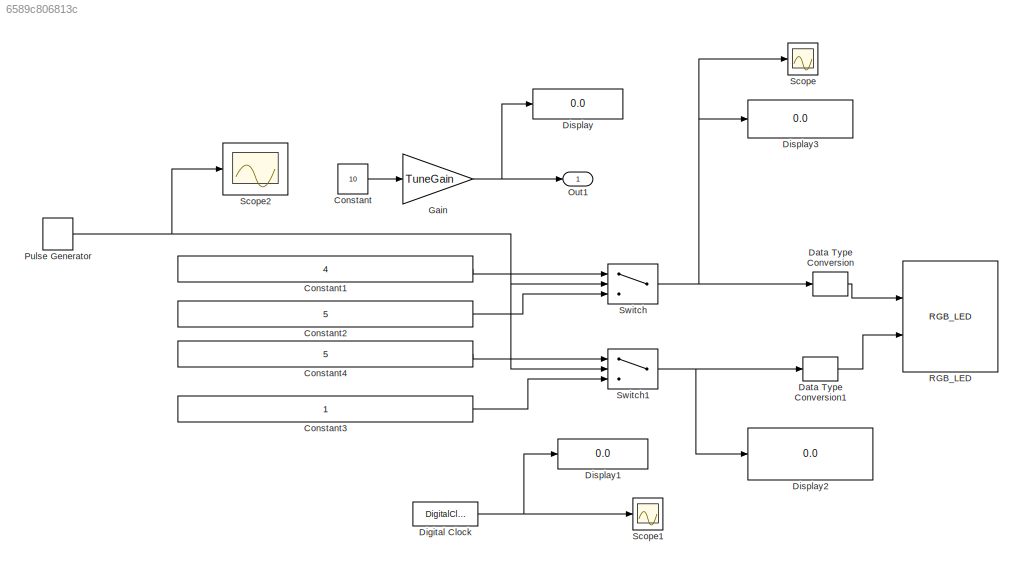
MODEL slx_6589c806813c
KIND model
CONFIG AbsTol = auto
CONFIG EnableMultiTasking = on
CONFIG FixedStep = auto
CONFIG InitFcn = TuneGain = 1
CONFIG MaxStep = auto
CONFIG MinStep = auto
CONFIG RelTol = 1e-3
CONFIG SampleTimeConstraint = Unconstrained
CONFIG Solver = FixedStepDiscrete
CONFIG SolverName = FixedStepDiscrete
CONFIG StartTime = 0.0
CONFIG StopTime = inf
BLOCK [Constant] Constant
  SampleTime = 0.1
  Value = 10
BLOCK [Constant] Constant1
  OutDataTypeStr = int8
  Value = 4
BLOCK [Constant] Constant2
  OutDataTypeStr = int8
  Value = 5
BLOCK [Constant] Constant3
  OutDataTypeStr = int8
BLOCK [Constant] Constant4
  OutDataTypeStr = int8
  Value = 5
BLOCK [DataTypeConversion] Data Type Conversion
  OutDataTypeStr = Enum: RGBLED_MODE_ENUM
  RndMeth = Floor
  SaturateOnIntegerOverflow = off
BLOCK [DataTypeConversion] Data Type Conversion1
  OutDataTypeStr = Enum: RGBLED_COLOR_ENUM
  RndMeth = Floor
  SaturateOnIntegerOverflow = off
BLOCK [DigitalClock] Digital Clock
  SampleTime = 0.1
BLOCK [Display] Display
  Decimation = 1
  Ports = [1]
BLOCK [Display] Display1
  Decimation = 1
  Ports = [1]
BLOCK [Display] Display2
  Decimation = 1
  Ports = [1]
BLOCK [Display] Display3
  Decimation = 1
  Ports = [1]
BLOCK [Gain] Gain
  Gain = TuneGain
  OutDataTypeStr = Inherit: Inherit via internal rule
  ParamDataTypeStr = Inherit: Inherit via internal rule
  SaturateOnIntegerOverflow = off
BLOCK [Outport] Out1
  IconDisplay = Port number
BLOCK [DiscretePulseGenerator] Pulse Generator
  Period = 6
  Ports = [0, 1]
  PulseType = Time based
  PulseWidth = 50
BLOCK [Reference] RGB_LED  REF=pixhawk_slib_sensors_actuators/RGB_LED
  Ports = [2]
  SourceBlock = pixhawk_slib_sensors_actuators/RGB_LED
  SourceProductName = Pixhawk Target Blocks
  SourceType = PX4_RGBLED - controls the mode and color of the Pixhawk RGB LED
BLOCK [Scope] Scope
  NumInputPorts = 1
  Ports = [1]
  ScopeSpecificationString = C++SS(StrPVP('Location','[11, 248, 335, 487]'),StrPVP('Open','off'),MxPVP('AxesTitles',53,'struct(''axes1'',''%<SignalLabel>'')'),MxPVP('ScopeGraphics',56,'struct(''FigureColor'',''[0.5 0.5 0.5]'',''AxesColor'',''[0 0 0]'',''AxesTickColor'',''[1 1 1]'',''LineColors'',''[1 1 0;1 0 1;0 1 1;1 0 0;0 1 0;0 0 1]'',''LineStyles'',''-|-|-|-|-|-'',''LineWidths'',''[0.5 0.5 0.5 0.5 0.5 0.5]'',''MarkerStyles...<+201ch>
BLOCK [Scope] Scope1
  NumInputPorts = 1
  Ports = [1]
  ScopeSpecificationString = C++SS(StrPVP('Location','[-2348, 732, -428, 1173]'),StrPVP('Open','off'),MxPVP('AxesTitles',53,'struct(''axes1'',''%<SignalLabel>'')'),MxPVP('ScopeGraphics',56,'struct(''FigureColor'',''[0.5 0.5 0.5]'',''AxesColor'',''[0 0 0]'',''AxesTickColor'',''[1 1 1]'',''LineColors'',''[1 1 0;1 0 1;0 1 1;1 0 0;0 1 0;0 0 1]'',''LineStyles'',''-|-|-|-|-|-'',''LineWidths'',''[0.5 0.5 0.5 0.5 0.5 0.5]'',''MarkerS...<+240ch>
BLOCK [Scope] Scope2
  NumInputPorts = 1
  Ports = [1]
  ScopeSpecificationString = C++SS(StrPVP('Location','[11, 507, 335, 746]'),StrPVP('Open','off'),MxPVP('AxesTitles',53,'struct(''axes1'',''%<SignalLabel>'')'),MxPVP('ScopeGraphics',56,'struct(''FigureColor'',''[0.5 0.5 0.5]'',''AxesColor'',''[0 0 0]'',''AxesTickColor'',''[1 1 1]'',''LineColors'',''[1 1 0;1 0 1;0 1 1;1 0 0;0 1 0;0 0 1]'',''LineStyles'',''-|-|-|-|-|-'',''LineWidths'',''[0.5 0.5 0.5 0.5 0.5 0.5]'',''MarkerStyles...<+234ch>
BLOCK [Switch] Switch
  Criteria = u2 ~= 0
  InputSameDT = off
  SaturateOnIntegerOverflow = off
  Threshold = 1500
BLOCK [Switch] Switch1
  Criteria = u2 ~= 0
  InputSameDT = off
  SaturateOnIntegerOverflow = off
  Threshold = 1500
LINE Constant1:1 -> Switch:1
LINE Constant2:1 -> Switch:3
LINE Constant3:1 -> Switch1:3
LINE Constant4:1 -> Switch1:1
LINE Constant:1 -> Gain:1
LINE Data Type Conversion1:1 -> RGB_LED:2
LINE Data Type Conversion:1 -> RGB_LED:1
NET Digital Clock:1 -> Display1:1, Scope1:1
NET Gain:1 -> Display:1, Out1:1
NET Pulse Generator:1 -> Scope2:1, Switch1:2, Switch:2
NET Switch1:1 -> Data Type Conversion1:1, Display2:1
NET Switch:1 -> Data Type Conversion:1, Display3:1, Scope:1
note: NET lines group one-source signal fan-out (src -> all destinations, sorted); 1:1 wires keep LINE
